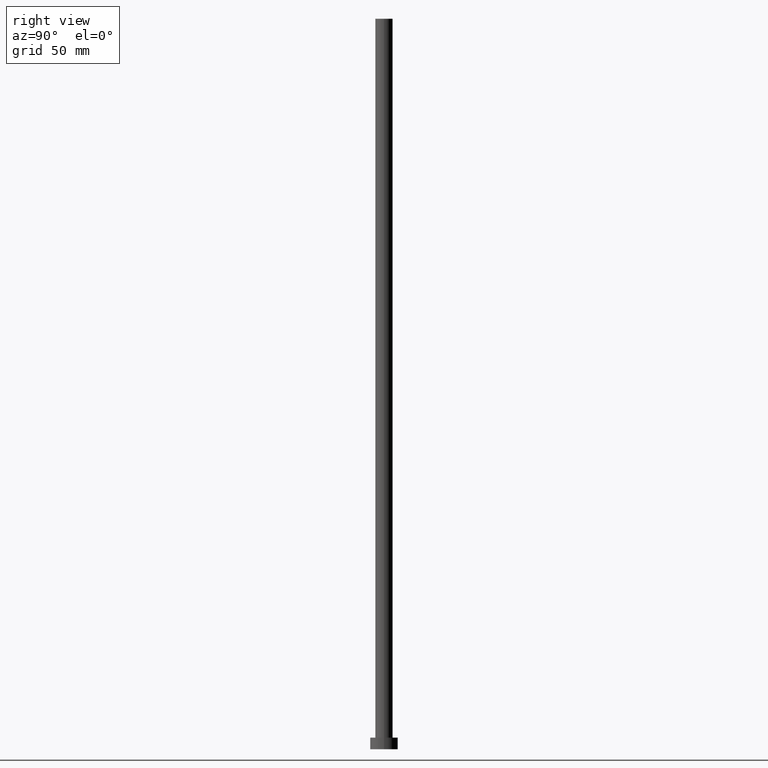
[diagram: clean part render]
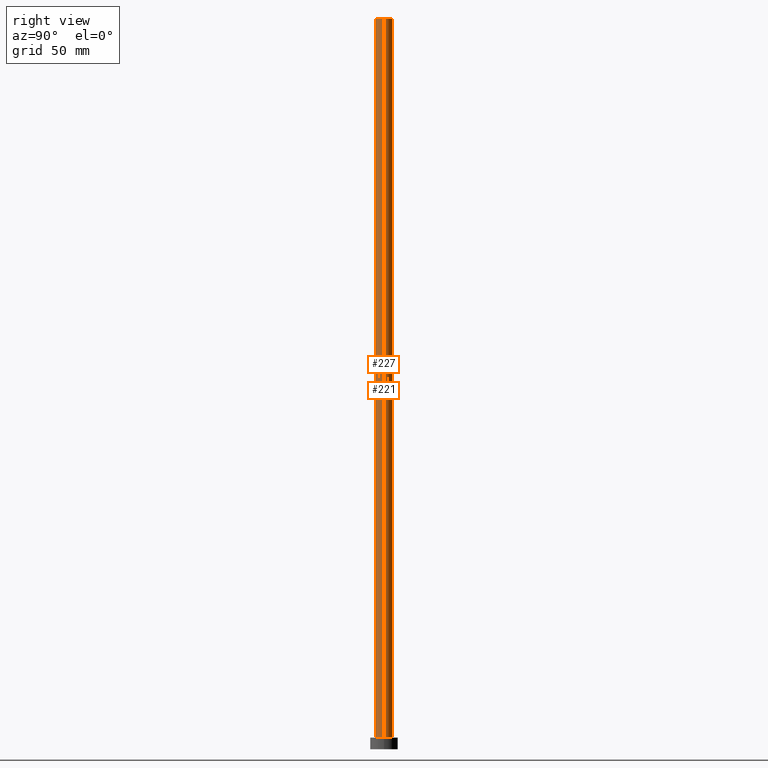
[diagram: same view with one multi-face feature highlighted, each face labeled with its STEP entity id]
A machine part, right view. The highlighted faces form ONE feature: a constant-radius fillet chain: 2 tangent blend faces with common blend radius 3.75 mm. The faces share edges in the B-rep.
Their STEP definitions:
[1] entity #227 (Cylinder):
#9 = VECTOR ( 'NONE', #217, 1000.000000000000000 ) ;
#16 = CARTESIAN_POINT ( 'NONE',  ( -3.750000000000000000, 0.000000000000000000, 315.0000000000000000 ) ) ;
#24 = EDGE_CURVE ( 'NONE', #54, #187, #113, .T. ) ;
#32 = DIRECTION ( 'NONE',  ( 0.000000000000000000, 0.000000000000000000, 1.000000000000000000 ) ) ;
#52 = EDGE_CURVE ( 'NONE', #54, #191, #76, .T. ) ;
#54 = VERTEX_POINT ( 'NONE', #16 ) ;
#58 = CYLINDRICAL_SURFACE ( 'NONE', #254, 3.750000000000000000 ) ;
#64 = DIRECTION ( 'NONE',  ( 0.000000000000000000, 0.000000000000000000, 1.000000000000000000 ) ) ;
#76 = CIRCLE ( 'NONE', #82, 3.750000000000000000 ) ;
#82 = AXIS2_PLACEMENT_3D ( 'NONE', #170, #32, #196 ) ;
#84 = LINE ( 'NONE', #157, #195 ) ;
#95 = CARTESIAN_POINT ( 'NONE',  ( 0.000000000000000000, 0.000000000000000000, 315.0000000000000000 ) ) ;
#97 = DIRECTION ( 'NONE',  ( -1.000000000000000000, 0.000000000000000000, 0.000000000000000000 ) ) ;
#101 = EDGE_CURVE ( 'NONE', #187, #247, #128, .T. ) ;
#103 = CARTESIAN_POINT ( 'NONE',  ( -3.750000000000000000, 0.000000000000000000, 5.000000000000000000 ) ) ;
#110 = FACE_OUTER_BOUND ( 'NONE', #122, .T. ) ;
#111 = ORIENTED_EDGE ( 'NONE', *, *, #101, .T. ) ;
#113 = LINE ( 'NONE', #153, #9 ) ;
#122 = EDGE_LOOP ( 'NONE', ( #225, #193, #143, #111 ) ) ;
#128 = CIRCLE ( 'NONE', #155, 3.750000000000000000 ) ;
#143 = ORIENTED_EDGE ( 'NONE', *, *, #24, .T. ) ;
#153 = CARTESIAN_POINT ( 'NONE',  ( -3.750000000000000000, 0.000000000000000000, 315.0000000000000000 ) ) ;
#155 = AXIS2_PLACEMENT_3D ( 'NONE', #253, #64, #180 ) ;
#157 = CARTESIAN_POINT ( 'NONE',  ( 3.750000000000000000, 4.592425496802573972E-16, 315.0000000000000000 ) ) ;
#169 = DIRECTION ( 'NONE',  ( -0.000000000000000000, -0.000000000000000000, -1.000000000000000000 ) ) ;
#170 = CARTESIAN_POINT ( 'NONE',  ( 0.000000000000000000, 0.000000000000000000, 315.0000000000000000 ) ) ;
#176 = CARTESIAN_POINT ( 'NONE',  ( 3.750000000000000000, 4.592425496802573972E-16, 315.0000000000000000 ) ) ;
#180 = DIRECTION ( 'NONE',  ( 1.000000000000000000, 0.000000000000000000, 0.000000000000000000 ) ) ;
#187 = VERTEX_POINT ( 'NONE', #103 ) ;
#191 = VERTEX_POINT ( 'NONE', #176 ) ;
#193 = ORIENTED_EDGE ( 'NONE', *, *, #52, .F. ) ;
#195 = VECTOR ( 'NONE', #241, 1000.000000000000000 ) ;
#196 = DIRECTION ( 'NONE',  ( 1.000000000000000000, 0.000000000000000000, 0.000000000000000000 ) ) ;
#199 = EDGE_CURVE ( 'NONE', #191, #247, #84, .T. ) ;
#217 = DIRECTION ( 'NONE',  ( -0.000000000000000000, -0.000000000000000000, -1.000000000000000000 ) ) ;
#225 = ORIENTED_EDGE ( 'NONE', *, *, #199, .F. ) ;
#227 = ADVANCED_FACE ( 'NONE', ( #110 ), #58, .T. ) ;
#241 = DIRECTION ( 'NONE',  ( -0.000000000000000000, -0.000000000000000000, -1.000000000000000000 ) ) ;
#247 = VERTEX_POINT ( 'NONE', #251 ) ;
#251 = CARTESIAN_POINT ( 'NONE',  ( 3.750000000000000000, 4.592425496802573972E-16, 5.000000000000000000 ) ) ;
#253 = CARTESIAN_POINT ( 'NONE',  ( 0.000000000000000000, 0.000000000000000000, 5.000000000000000000 ) ) ;
#254 = AXIS2_PLACEMENT_3D ( 'NONE', #95, #169, #97 ) ;
[2] entity #221 (Cylinder):
#7 = ORIENTED_EDGE ( 'NONE', *, *, #240, .F. ) ;
#9 = VECTOR ( 'NONE', #217, 1000.000000000000000 ) ;
#12 = DIRECTION ( 'NONE',  ( 0.000000000000000000, 0.000000000000000000, 1.000000000000000000 ) ) ;
#15 = EDGE_CURVE ( 'NONE', #247, #187, #219, .T. ) ;
#16 = CARTESIAN_POINT ( 'NONE',  ( -3.750000000000000000, 0.000000000000000000, 315.0000000000000000 ) ) ;
#24 = EDGE_CURVE ( 'NONE', #54, #187, #113, .T. ) ;
#30 = FACE_OUTER_BOUND ( 'NONE', #129, .T. ) ;
#44 = AXIS2_PLACEMENT_3D ( 'NONE', #91, #77, #151 ) ;
#49 = ORIENTED_EDGE ( 'NONE', *, *, #199, .T. ) ;
#51 = ORIENTED_EDGE ( 'NONE', *, *, #15, .T. ) ;
#54 = VERTEX_POINT ( 'NONE', #16 ) ;
#70 = CARTESIAN_POINT ( 'NONE',  ( 0.000000000000000000, 0.000000000000000000, 315.0000000000000000 ) ) ;
#77 = DIRECTION ( 'NONE',  ( 0.000000000000000000, 0.000000000000000000, 1.000000000000000000 ) ) ;
#84 = LINE ( 'NONE', #157, #195 ) ;
#91 = CARTESIAN_POINT ( 'NONE',  ( 0.000000000000000000, 0.000000000000000000, 315.0000000000000000 ) ) ;
#94 = ORIENTED_EDGE ( 'NONE', *, *, #24, .F. ) ;
#103 = CARTESIAN_POINT ( 'NONE',  ( -3.750000000000000000, 0.000000000000000000, 5.000000000000000000 ) ) ;
#113 = LINE ( 'NONE', #153, #9 ) ;
#129 = EDGE_LOOP ( 'NONE', ( #7, #49, #51, #94 ) ) ;
#151 = DIRECTION ( 'NONE',  ( 1.000000000000000000, 0.000000000000000000, 0.000000000000000000 ) ) ;
#152 = DIRECTION ( 'NONE',  ( -0.000000000000000000, -0.000000000000000000, -1.000000000000000000 ) ) ;
#153 = CARTESIAN_POINT ( 'NONE',  ( -3.750000000000000000, 0.000000000000000000, 315.0000000000000000 ) ) ;
#157 = CARTESIAN_POINT ( 'NONE',  ( 3.750000000000000000, 4.592425496802573972E-16, 315.0000000000000000 ) ) ;
#168 = AXIS2_PLACEMENT_3D ( 'NONE', #70, #152, #216 ) ;
#176 = CARTESIAN_POINT ( 'NONE',  ( 3.750000000000000000, 4.592425496802573972E-16, 315.0000000000000000 ) ) ;
#185 = AXIS2_PLACEMENT_3D ( 'NONE', #213, #12, #198 ) ;
#187 = VERTEX_POINT ( 'NONE', #103 ) ;
#191 = VERTEX_POINT ( 'NONE', #176 ) ;
#195 = VECTOR ( 'NONE', #241, 1000.000000000000000 ) ;
#198 = DIRECTION ( 'NONE',  ( 1.000000000000000000, 0.000000000000000000, 0.000000000000000000 ) ) ;
#199 = EDGE_CURVE ( 'NONE', #191, #247, #84, .T. ) ;
#213 = CARTESIAN_POINT ( 'NONE',  ( 0.000000000000000000, 0.000000000000000000, 5.000000000000000000 ) ) ;
#216 = DIRECTION ( 'NONE',  ( -1.000000000000000000, 0.000000000000000000, 0.000000000000000000 ) ) ;
#217 = DIRECTION ( 'NONE',  ( -0.000000000000000000, -0.000000000000000000, -1.000000000000000000 ) ) ;
#219 = CIRCLE ( 'NONE', #185, 3.750000000000000000 ) ;
#221 = ADVANCED_FACE ( 'NONE', ( #30 ), #246, .T. ) ;
#240 = EDGE_CURVE ( 'NONE', #191, #54, #245, .T. ) ;
#241 = DIRECTION ( 'NONE',  ( -0.000000000000000000, -0.000000000000000000, -1.000000000000000000 ) ) ;
#245 = CIRCLE ( 'NONE', #44, 3.750000000000000000 ) ;
#246 = CYLINDRICAL_SURFACE ( 'NONE', #168, 3.750000000000000000 ) ;
#247 = VERTEX_POINT ( 'NONE', #251 ) ;
#251 = CARTESIAN_POINT ( 'NONE',  ( 3.750000000000000000, 4.592425496802573972E-16, 5.000000000000000000 ) ) ;